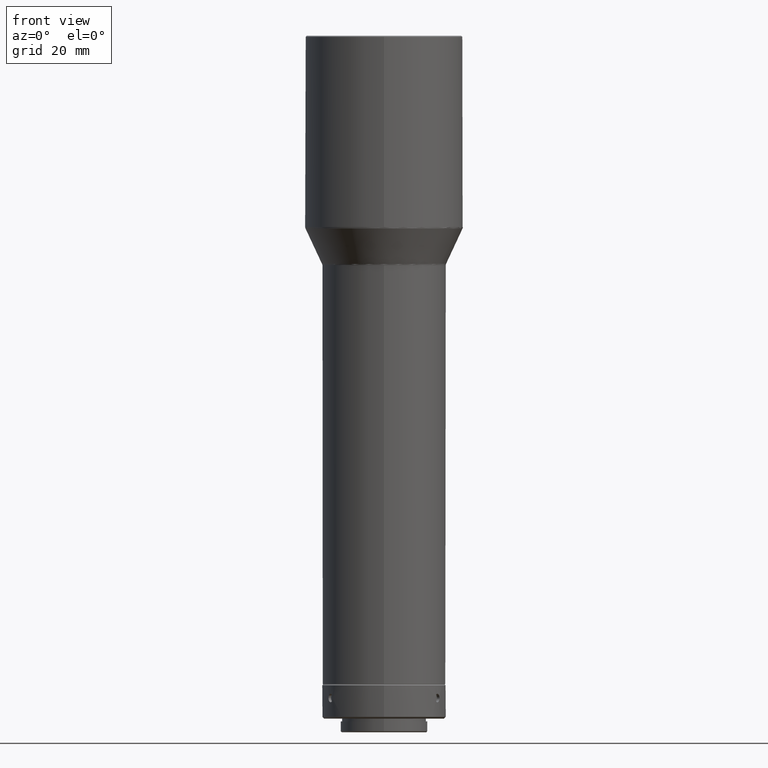
[diagram: clean part render]
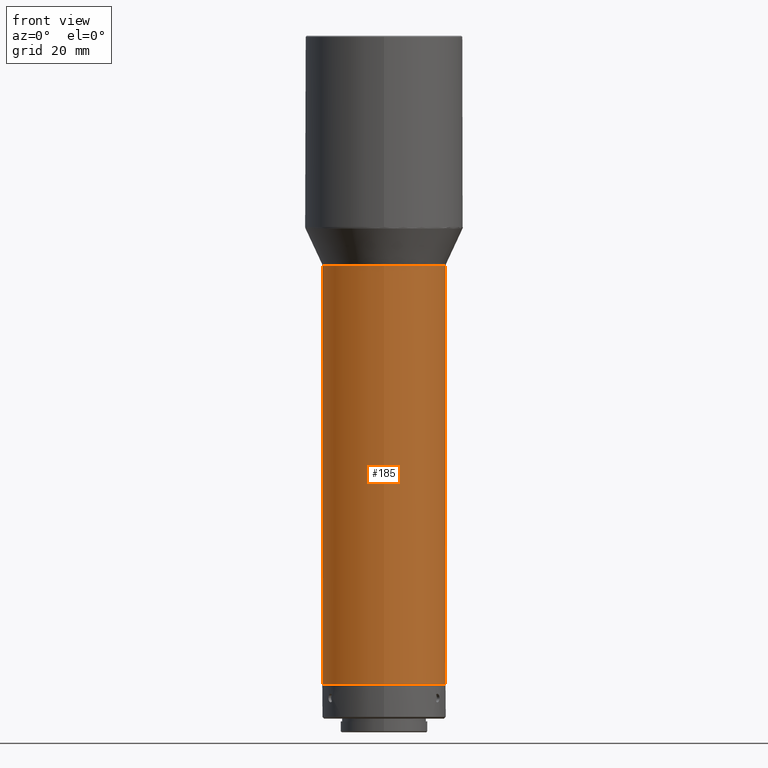
[diagram: same view with one face highlighted and labeled with its STEP entity id]
A machine part, front view. The second image highlights one B-rep face of the part: STEP entity #185.
In plain terms, the highlighted cylindrical surface (bore or boss wall) has radius 18 mm, axis along (0, 0, 1).
Its self-contained STEP definition (entity closure, byte-faithful):
#11 = AXIS2_PLACEMENT_3D ( 'NONE', #427, #691, #288 ) ;
#80 = EDGE_LOOP ( 'NONE', ( #352 ) ) ;
#92 = EDGE_CURVE ( 'NONE', #219, #219, #657, .T. ) ;
#185 = ADVANCED_FACE ( 'NONE', ( #263, #730 ), #271, .T. ) ;
#198 = ORIENTED_EDGE ( 'NONE', *, *, #711, .T. ) ;
#219 = VERTEX_POINT ( 'NONE', #422 ) ;
#263 = FACE_OUTER_BOUND ( 'NONE', #80, .T. ) ;
#271 = CYLINDRICAL_SURFACE ( 'NONE', #747, 18.00000000000000355 ) ;
#288 = DIRECTION ( 'NONE',  ( 0.000000000000000000, -1.000000000000000000, 0.000000000000000000 ) ) ;
#306 = CARTESIAN_POINT ( 'NONE',  ( 8.018944991708157582E-15, -18.00000000000000355, -633.9442292651908701 ) ) ;
#352 = ORIENTED_EDGE ( 'NONE', *, *, #92, .T. ) ;
#414 = DIRECTION ( 'NONE',  ( 0.000000000000000000, -1.000000000000000000, 0.000000000000000000 ) ) ;
#422 = CARTESIAN_POINT ( 'NONE',  ( 8.018944991708152849E-15, -18.00000000000000711, -756.0518459999999550 ) ) ;
#427 = CARTESIAN_POINT ( 'NONE',  ( 8.018944991708152849E-15, -4.634425477800788993E-15, -756.0518459999999550 ) ) ;
#447 = VERTEX_POINT ( 'NONE', #306 ) ;
#494 = CARTESIAN_POINT ( 'NONE',  ( 8.018944991708157582E-15, -1.728698864363524612E-15, -633.9442292651908701 ) ) ;
#508 = CIRCLE ( 'NONE', #748, 18.00000000000000355 ) ;
#584 = DIRECTION ( 'NONE',  ( 4.314083075427408311E-32, 2.379644031336606723E-17, 1.000000000000000000 ) ) ;
#589 = CARTESIAN_POINT ( 'NONE',  ( 8.018944991708160738E-15, -1.356645083301169713E-16, -567.0000000000001137 ) ) ;
#620 = DIRECTION ( 'NONE',  ( -4.314083075427408311E-32, -2.379644031336606723E-17, -1.000000000000000000 ) ) ;
#657 = CIRCLE ( 'NONE', #11, 18.00000000000000355 ) ;
#691 = DIRECTION ( 'NONE',  ( 4.314083075427408311E-32, 2.379644031336606723E-17, 1.000000000000000000 ) ) ;
#711 = EDGE_CURVE ( 'NONE', #447, #447, #508, .T. ) ;
#730 = FACE_OUTER_BOUND ( 'NONE', #838, .T. ) ;
#747 = AXIS2_PLACEMENT_3D ( 'NONE', #589, #584, #798 ) ;
#748 = AXIS2_PLACEMENT_3D ( 'NONE', #494, #620, #414 ) ;
#798 = DIRECTION ( 'NONE',  ( 0.000000000000000000, -1.000000000000000000, 0.000000000000000000 ) ) ;
#838 = EDGE_LOOP ( 'NONE', ( #198 ) ) ;